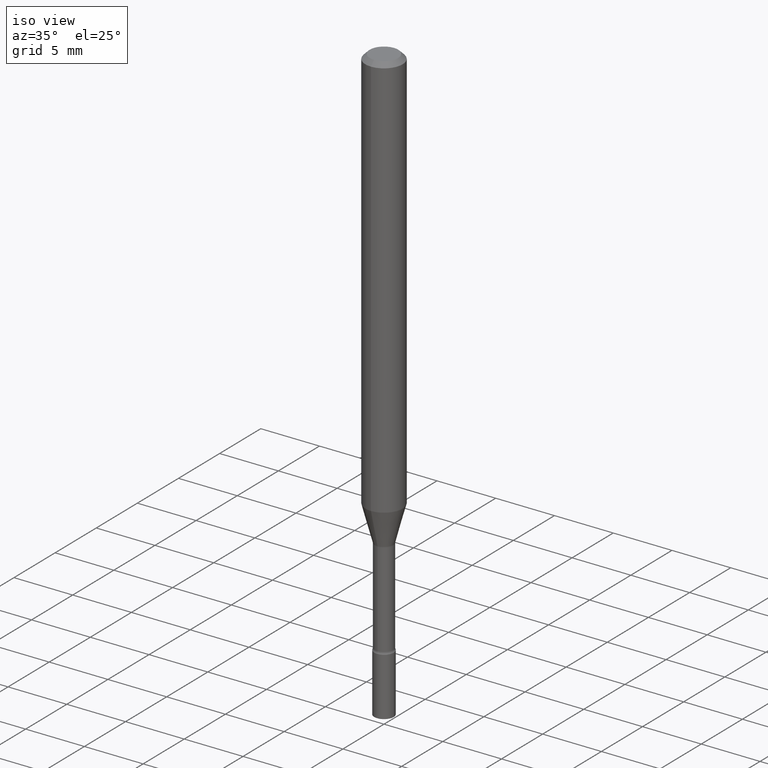
[diagram: clean part render]
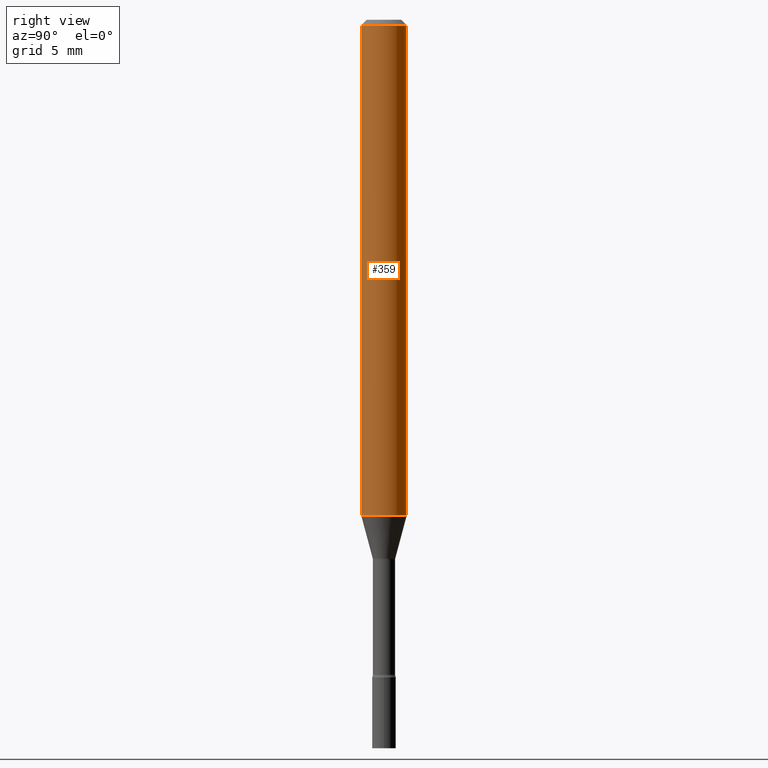
[diagram: tour spotlight — one face highlighted and labeled with its STEP entity id]
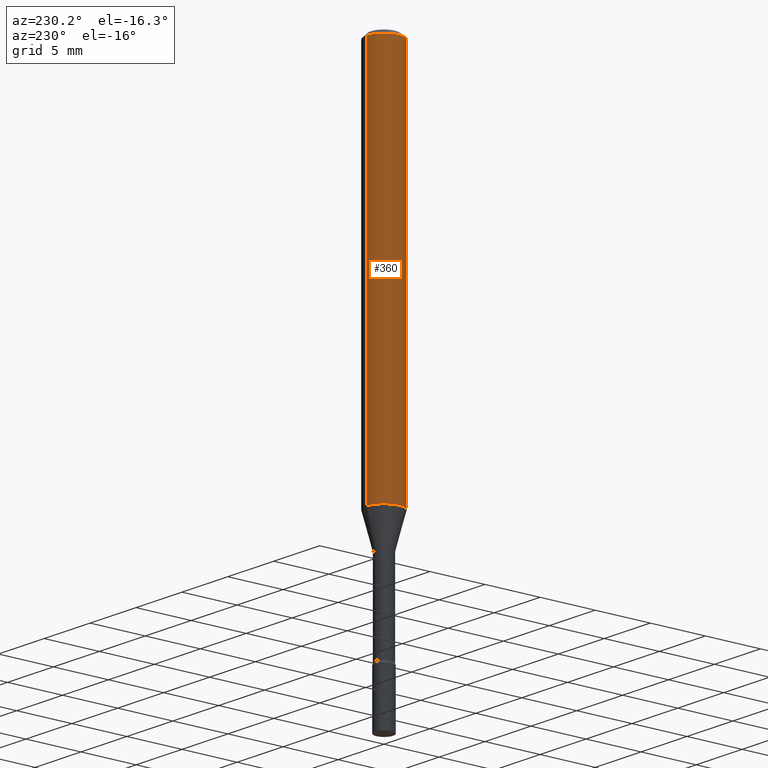
[diagram: tour spotlight — one face highlighted and labeled with its STEP entity id]
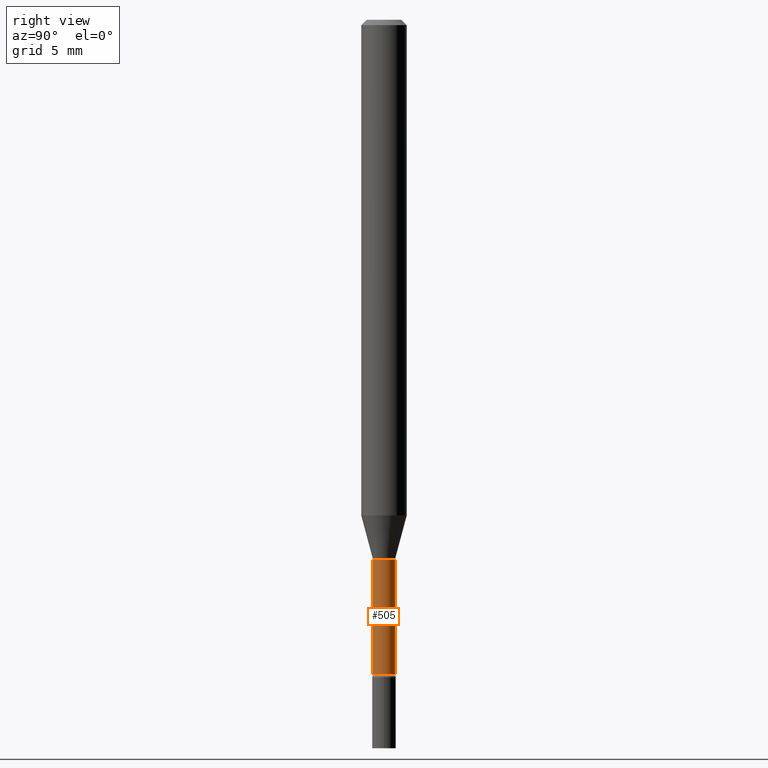
[diagram: tour spotlight — one face highlighted and labeled with its STEP entity id]
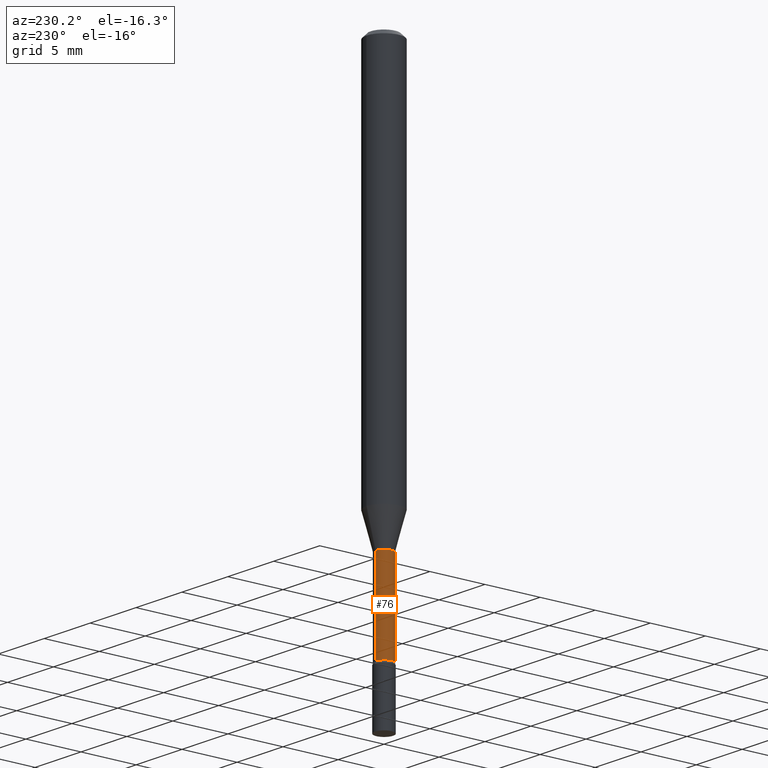
[diagram: tour spotlight — one face highlighted and labeled with its STEP entity id]
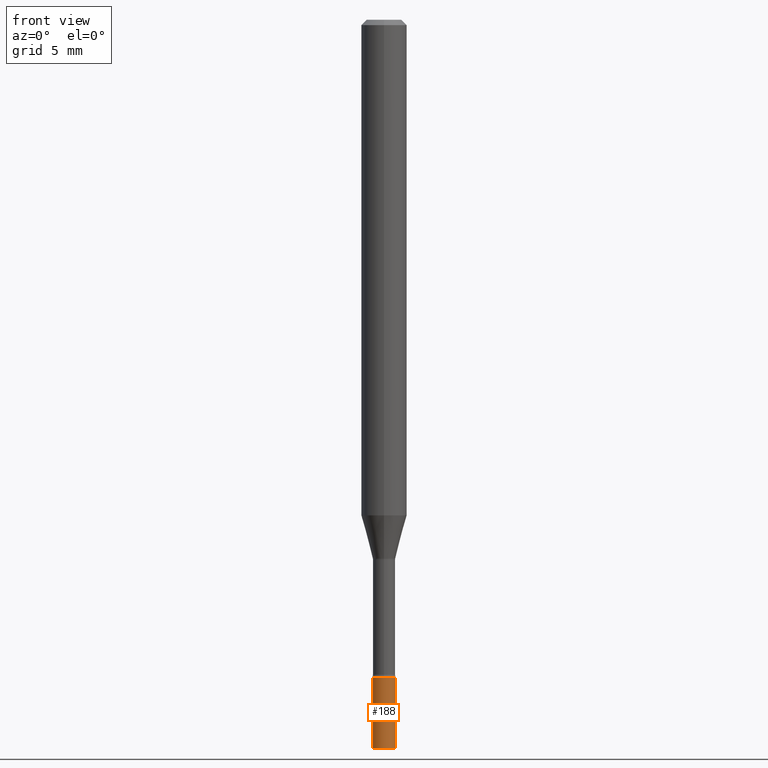
[diagram: tour spotlight — one face highlighted and labeled with its STEP entity id]
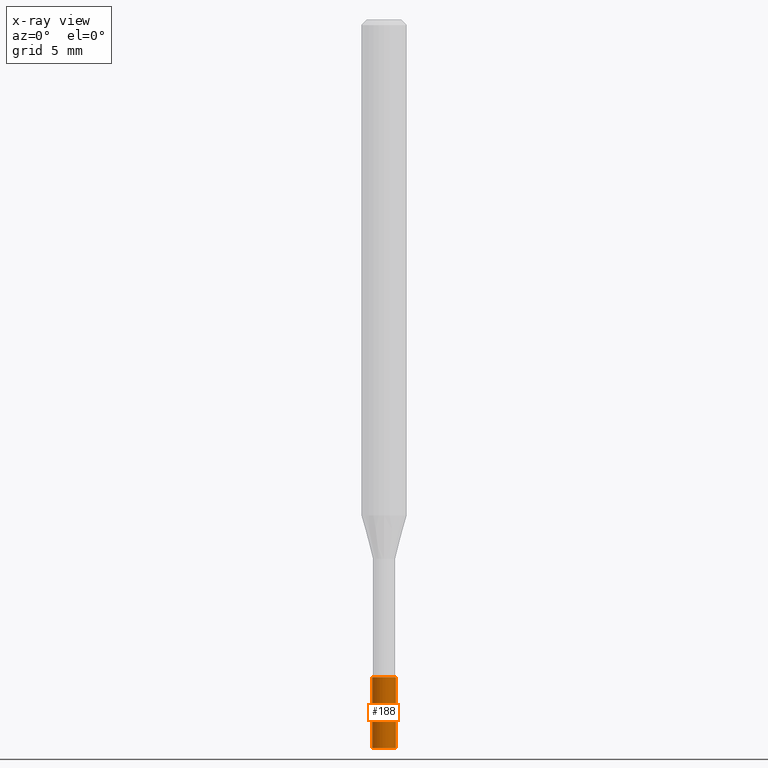
[diagram: x-ray of the same camera — body ghosted, this tour face saturated]
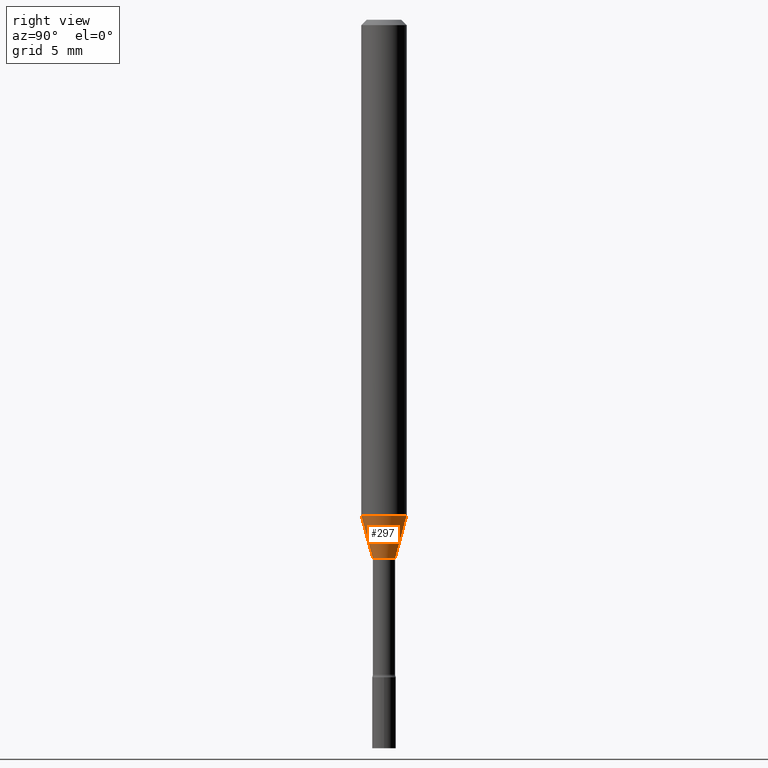
[diagram: tour spotlight — one face highlighted and labeled with its STEP entity id]
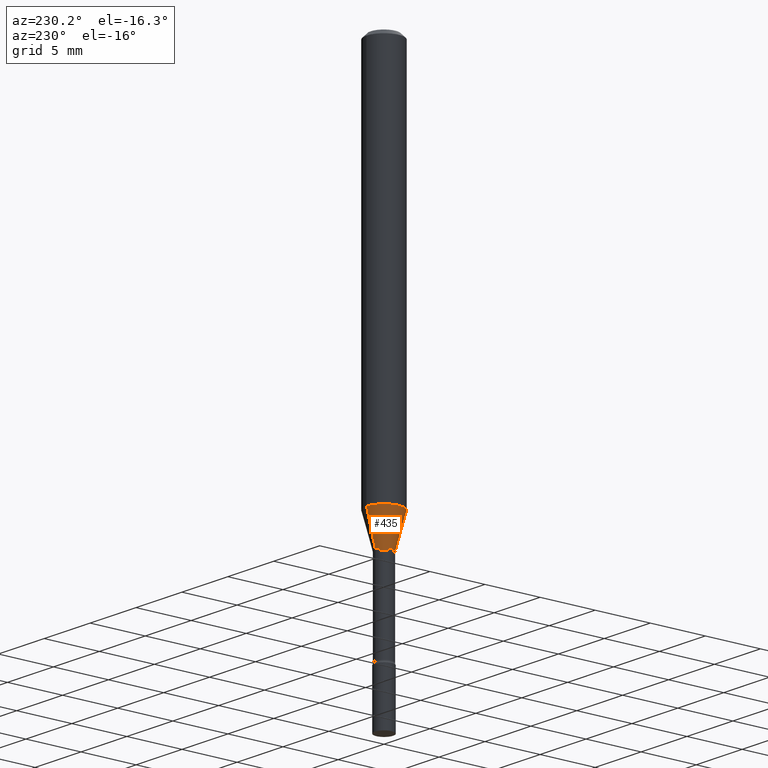
[diagram: tour spotlight — one face highlighted and labeled with its STEP entity id]
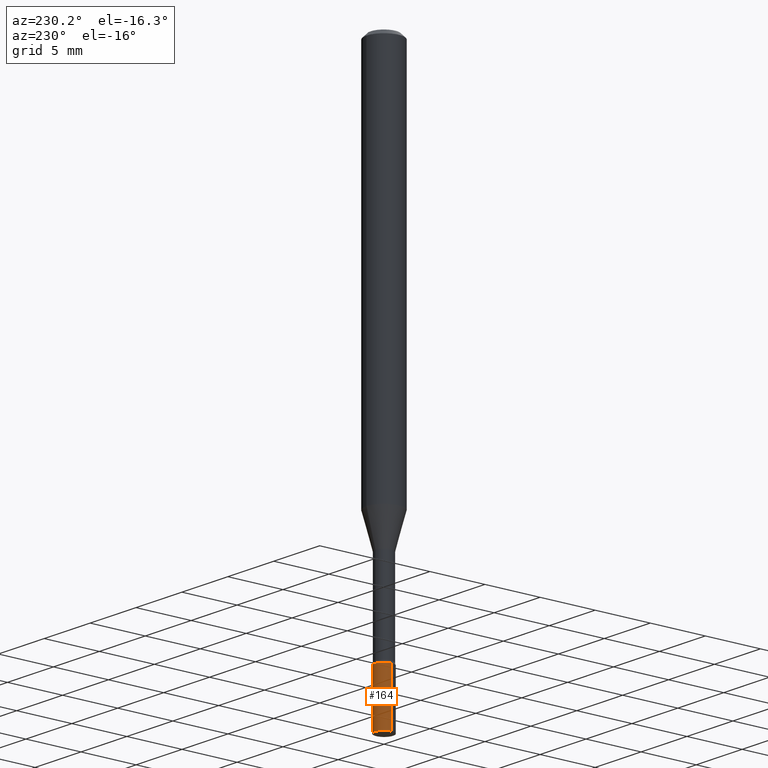
[diagram: tour spotlight — one face highlighted and labeled with its STEP entity id]
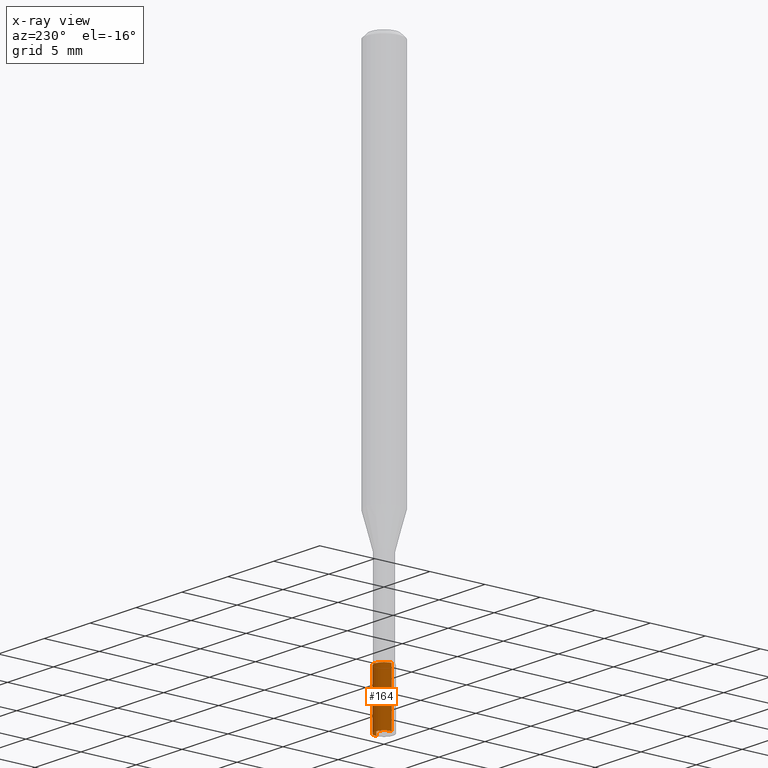
[diagram: x-ray of the same camera — body ghosted, this tour face saturated]
A machine part: a face-by-face anatomy tour. The part has 18 B-rep faces; the first image is the clean iso view, then the 8 largest visible faces are spotlighted one at a time (largest first), each with its STEP entity span.

Face 1 — right view, entity #359. In plain terms, the highlighted cylindrical surface (edge-blend (fillet) strip) has radius 1.5875 mm, axis along (-0, 0, 1).
Definition (entity closure, byte-faithful):
#16 = VERTEX_POINT ( 'NONE', #168 ) ;
#24 = CIRCLE ( 'NONE', #160, 0.06250000000000000000 ) ;
#25 = VERTEX_POINT ( 'NONE', #276 ) ;
#27 = DIRECTION ( 'NONE',  ( -2.445445688914385754E-29, 3.491514444090614360E-15, 1.000000000000000000 ) ) ;
#53 = EDGE_CURVE ( 'NONE', #134, #99, #303, .T. ) ;
#77 = CARTESIAN_POINT ( 'NONE',  ( 4.440892098500956497E-16, 0.06249999999999521910, -1.360760976698174973 ) ) ;
#80 = CARTESIAN_POINT ( 'NONE',  ( -4.364351673553584879E-16, -0.06250000000000477396, -1.360760976698174307 ) ) ;
#99 = VERTEX_POINT ( 'NONE', #77 ) ;
#102 = CYLINDRICAL_SURFACE ( 'NONE', #307, 0.06250000000000000000 ) ;
#134 = VERTEX_POINT ( 'NONE', #80 ) ;
#153 = VECTOR ( 'NONE', #498, 39.37007874015748143 ) ;
#158 = AXIS2_PLACEMENT_3D ( 'NONE', #321, #310, #233 ) ;
#160 = AXIS2_PLACEMENT_3D ( 'NONE', #161, #27, #322 ) ;
#161 = CARTESIAN_POINT ( 'NONE',  ( 3.668168533371585794E-31, -5.237271666135932017E-17, -0.01500000000000003067 ) ) ;
#168 = CARTESIAN_POINT ( 'NONE',  ( 4.440892098500961428E-16, 0.06249999999999995143, -0.01500000000000024751 ) ) ;
#179 = EDGE_CURVE ( 'NONE', #134, #25, #266, .T. ) ;
#207 = EDGE_CURVE ( 'NONE', #25, #16, #24, .T. ) ;
#233 = DIRECTION ( 'NONE',  ( -6.982962677686265922E-15, -1.000000000000000000, 4.370956789862821150E-15 ) ) ;
#238 = ORIENTED_EDGE ( 'NONE', *, *, #320, .T. ) ;
#252 = DIRECTION ( 'NONE',  ( -6.982962677686265922E-15, -1.000000000000000000, 3.491514444090614360E-15 ) ) ;
#253 = LINE ( 'NONE', #331, #153 ) ;
#266 = LINE ( 'NONE', #311, #365 ) ;
#276 = CARTESIAN_POINT ( 'NONE',  ( -4.364351673553912750E-16, -0.06250000000000005551, -0.01499999999999981209 ) ) ;
#303 = CIRCLE ( 'NONE', #158, 0.06250000000000000000 ) ;
#307 = AXIS2_PLACEMENT_3D ( 'NONE', #389, #334, #252 ) ;
#310 = DIRECTION ( 'NONE',  ( -2.445445688914385754E-29, 3.491514444090614360E-15, 1.000000000000000000 ) ) ;
#311 = CARTESIAN_POINT ( 'NONE',  ( -4.364351673553916201E-16, -0.06250000000000000000, 2.182196527556633975E-16 ) ) ;
#320 = EDGE_CURVE ( 'NONE', #99, #16, #253, .T. ) ;
#321 = CARTESIAN_POINT ( 'NONE',  ( 3.327667064109479713E-29, -4.751116605096527782E-15, -1.360760976698174529 ) ) ;
#322 = DIRECTION ( 'NONE',  ( -6.982962677686265922E-15, -1.000000000000000000, 3.483106191921935554E-15 ) ) ;
#331 = CARTESIAN_POINT ( 'NONE',  ( 4.440892098500625669E-16, 0.06250000000000000000, -2.182196527556633975E-16 ) ) ;
#334 = DIRECTION ( 'NONE',  ( -2.445445688914385754E-29, 3.491514444090614360E-15, 1.000000000000000000 ) ) ;
#359 = ADVANCED_FACE ( 'NONE', ( #510 ), #102, .T. ) ;
#365 = VECTOR ( 'NONE', #474, 39.37007874015748143 ) ;
#389 = CARTESIAN_POINT ( 'NONE',  ( 0.000000000000000000, 0.000000000000000000, 0.000000000000000000 ) ) ;
#452 = EDGE_LOOP ( 'NONE', ( #503, #238, #500, #483 ) ) ;
#474 = DIRECTION ( 'NONE',  ( -2.445445688914385754E-29, 3.491514444090614360E-15, 1.000000000000000000 ) ) ;
#483 = ORIENTED_EDGE ( 'NONE', *, *, #179, .F. ) ;
#498 = DIRECTION ( 'NONE',  ( -2.445445688914385754E-29, 3.491514444090614360E-15, 1.000000000000000000 ) ) ;
#500 = ORIENTED_EDGE ( 'NONE', *, *, #207, .F. ) ;
#503 = ORIENTED_EDGE ( 'NONE', *, *, #53, .T. ) ;
#510 = FACE_OUTER_BOUND ( 'NONE', #452, .T. ) ;

Face 2 — auxiliary view, entity #360. In plain terms, the highlighted cylindrical surface (edge-blend (fillet) strip) has radius 1.5875 mm, axis along (-0, 0, 1).
Definition (entity closure, byte-faithful):
#16 = VERTEX_POINT ( 'NONE', #168 ) ;
#22 = ORIENTED_EDGE ( 'NONE', *, *, #320, .F. ) ;
#25 = VERTEX_POINT ( 'NONE', #276 ) ;
#32 = DIRECTION ( 'NONE',  ( -6.982962677686265922E-15, -1.000000000000000000, 4.370956789862821150E-15 ) ) ;
#58 = ORIENTED_EDGE ( 'NONE', *, *, #179, .T. ) ;
#66 = CYLINDRICAL_SURFACE ( 'NONE', #336, 0.06250000000000000000 ) ;
#77 = CARTESIAN_POINT ( 'NONE',  ( 4.440892098500956497E-16, 0.06249999999999521910, -1.360760976698174973 ) ) ;
#80 = CARTESIAN_POINT ( 'NONE',  ( -4.364351673553584879E-16, -0.06250000000000477396, -1.360760976698174307 ) ) ;
#99 = VERTEX_POINT ( 'NONE', #77 ) ;
#117 = DIRECTION ( 'NONE',  ( -6.982962677686265922E-15, -1.000000000000000000, 3.491514444090614360E-15 ) ) ;
#134 = VERTEX_POINT ( 'NONE', #80 ) ;
#139 = EDGE_LOOP ( 'NONE', ( #22, #221, #58, #258 ) ) ;
#153 = VECTOR ( 'NONE', #498, 39.37007874015748143 ) ;
#168 = CARTESIAN_POINT ( 'NONE',  ( 4.440892098500961428E-16, 0.06249999999999995143, -0.01500000000000024751 ) ) ;
#170 = CARTESIAN_POINT ( 'NONE',  ( 3.668168533371585794E-31, -5.237271666135932017E-17, -0.01500000000000003067 ) ) ;
#179 = EDGE_CURVE ( 'NONE', #134, #25, #266, .T. ) ;
#212 = CIRCLE ( 'NONE', #289, 0.06250000000000000000 ) ;
#221 = ORIENTED_EDGE ( 'NONE', *, *, #430, .T. ) ;
#253 = LINE ( 'NONE', #331, #153 ) ;
#258 = ORIENTED_EDGE ( 'NONE', *, *, #376, .F. ) ;
#266 = LINE ( 'NONE', #311, #365 ) ;
#276 = CARTESIAN_POINT ( 'NONE',  ( -4.364351673553912750E-16, -0.06250000000000005551, -0.01499999999999981209 ) ) ;
#279 = DIRECTION ( 'NONE',  ( -2.445445688914385754E-29, 3.491514444090614360E-15, 1.000000000000000000 ) ) ;
#289 = AXIS2_PLACEMENT_3D ( 'NONE', #170, #279, #439 ) ;
#311 = CARTESIAN_POINT ( 'NONE',  ( -4.364351673553916201E-16, -0.06250000000000000000, 2.182196527556633975E-16 ) ) ;
#320 = EDGE_CURVE ( 'NONE', #99, #16, #253, .T. ) ;
#325 = DIRECTION ( 'NONE',  ( -2.445445688914385754E-29, 3.491514444090614360E-15, 1.000000000000000000 ) ) ;
#331 = CARTESIAN_POINT ( 'NONE',  ( 4.440892098500625669E-16, 0.06250000000000000000, -2.182196527556633975E-16 ) ) ;
#336 = AXIS2_PLACEMENT_3D ( 'NONE', #463, #451, #117 ) ;
#360 = ADVANCED_FACE ( 'NONE', ( #472 ), #66, .T. ) ;
#365 = VECTOR ( 'NONE', #474, 39.37007874015748143 ) ;
#369 = CARTESIAN_POINT ( 'NONE',  ( 3.327667064109479713E-29, -4.751116605096527782E-15, -1.360760976698174529 ) ) ;
#376 = EDGE_CURVE ( 'NONE', #16, #25, #212, .T. ) ;
#404 = CIRCLE ( 'NONE', #422, 0.06250000000000000000 ) ;
#422 = AXIS2_PLACEMENT_3D ( 'NONE', #369, #325, #32 ) ;
#430 = EDGE_CURVE ( 'NONE', #99, #134, #404, .T. ) ;
#439 = DIRECTION ( 'NONE',  ( -6.982962677686265922E-15, -1.000000000000000000, 3.483106191921935554E-15 ) ) ;
#451 = DIRECTION ( 'NONE',  ( -2.445445688914385754E-29, 3.491514444090614360E-15, 1.000000000000000000 ) ) ;
#463 = CARTESIAN_POINT ( 'NONE',  ( 0.000000000000000000, 0.000000000000000000, 0.000000000000000000 ) ) ;
#472 = FACE_OUTER_BOUND ( 'NONE', #139, .T. ) ;
#474 = DIRECTION ( 'NONE',  ( -2.445445688914385754E-29, 3.491514444090614360E-15, 1.000000000000000000 ) ) ;
#498 = DIRECTION ( 'NONE',  ( -2.445445688914385754E-29, 3.491514444090614360E-15, 1.000000000000000000 ) ) ;

Face 3 — right view, entity #505. In plain terms, the highlighted cylindrical surface (edge-blend (fillet) strip) has radius 0.776 mm, axis along (-0, 0, 1).
Definition (entity closure, byte-faithful):
#2 = EDGE_CURVE ( 'NONE', #294, #103, #283, .T. ) ;
#21 = ORIENTED_EDGE ( 'NONE', *, *, #223, .F. ) ;
#37 = CARTESIAN_POINT ( 'NONE',  ( 0.000000000000000000, 0.000000000000000000, 0.000000000000000000 ) ) ;
#78 = FACE_OUTER_BOUND ( 'NONE', #95, .T. ) ;
#85 = VERTEX_POINT ( 'NONE', #357 ) ;
#95 = EDGE_LOOP ( 'NONE', ( #324, #302, #21, #257 ) ) ;
#103 = VERTEX_POINT ( 'NONE', #358 ) ;
#142 = EDGE_CURVE ( 'NONE', #294, #85, #388, .T. ) ;
#156 = LINE ( 'NONE', #316, #477 ) ;
#167 = CYLINDRICAL_SURFACE ( 'NONE', #246, 0.03055000000000001464 ) ;
#223 = EDGE_CURVE ( 'NONE', #103, #461, #455, .T. ) ;
#228 = DIRECTION ( 'NONE',  ( -6.982962677686265133E-15, -1.000000000000000000, 0.000000000000000000 ) ) ;
#231 = DIRECTION ( 'NONE',  ( -6.982962677686265922E-15, -1.000000000000000000, 0.000000000000000000 ) ) ;
#241 = DIRECTION ( 'NONE',  ( -2.445445688914385754E-29, 3.491514444090614360E-15, 1.000000000000000000 ) ) ;
#244 = EDGE_CURVE ( 'NONE', #85, #461, #156, .T. ) ;
#246 = AXIS2_PLACEMENT_3D ( 'NONE', #37, #241, #448 ) ;
#257 = ORIENTED_EDGE ( 'NONE', *, *, #2, .F. ) ;
#265 = VECTOR ( 'NONE', #444, 39.37007874015748143 ) ;
#273 = DIRECTION ( 'NONE',  ( -2.445445688914385754E-29, 3.491514444090614360E-15, 1.000000000000000000 ) ) ;
#275 = CARTESIAN_POINT ( 'NONE',  ( 2.170708057747546405E-16, 0.03054999999999482435, -1.481974787463810728 ) ) ;
#283 = LINE ( 'NONE', #486, #265 ) ;
#294 = VERTEX_POINT ( 'NONE', #363 ) ;
#302 = ORIENTED_EDGE ( 'NONE', *, *, #244, .T. ) ;
#316 = CARTESIAN_POINT ( 'NONE',  ( 2.170708057747106862E-16, 0.03055000000000001464, -1.066657662669683377E-16 ) ) ;
#318 = AXIS2_PLACEMENT_3D ( 'NONE', #353, #431, #231 ) ;
#324 = ORIENTED_EDGE ( 'NONE', *, *, #142, .T. ) ;
#353 = CARTESIAN_POINT ( 'NONE',  ( 4.395943500391912807E-29, -6.276361113477980336E-15, -1.797604224178627419 ) ) ;
#357 = CARTESIAN_POINT ( 'NONE',  ( 2.239985974484157418E-16, 0.03054999999999375923, -1.797604224178627419 ) ) ;
#358 = CARTESIAN_POINT ( 'NONE',  ( -2.133295098032791645E-16, -0.03055000000000517371, -1.481974787463810728 ) ) ;
#363 = CARTESIAN_POINT ( 'NONE',  ( -2.133295098032716950E-16, -0.03055000000000630822, -1.797604224178627419 ) ) ;
#372 = AXIS2_PLACEMENT_3D ( 'NONE', #432, #273, #228 ) ;
#388 = CIRCLE ( 'NONE', #318, 0.03055000000000003199 ) ;
#431 = DIRECTION ( 'NONE',  ( -2.445445688914385754E-29, 3.491514444090614360E-15, 1.000000000000000000 ) ) ;
#432 = CARTESIAN_POINT ( 'NONE',  ( 3.624088855083189206E-29, -5.174336376208013711E-15, -1.481974787463810728 ) ) ;
#444 = DIRECTION ( 'NONE',  ( -2.445445688914385754E-29, 3.491514444090614360E-15, 1.000000000000000000 ) ) ;
#448 = DIRECTION ( 'NONE',  ( -6.982962677686265922E-15, -1.000000000000000000, 3.491514444090614755E-15 ) ) ;
#455 = CIRCLE ( 'NONE', #372, 0.03055000000000000077 ) ;
#461 = VERTEX_POINT ( 'NONE', #275 ) ;
#477 = VECTOR ( 'NONE', #478, 39.37007874015748143 ) ;
#478 = DIRECTION ( 'NONE',  ( -2.445445688914385754E-29, 3.491514444090614360E-15, 1.000000000000000000 ) ) ;
#486 = CARTESIAN_POINT ( 'NONE',  ( -2.133295098033155261E-16, -0.03055000000000001464, 1.066657662669683377E-16 ) ) ;
#505 = ADVANCED_FACE ( 'NONE', ( #78 ), #167, .T. ) ;

Face 4 — auxiliary view, entity #76. In plain terms, the highlighted cylindrical surface (edge-blend (fillet) strip) has radius 0.776 mm, axis along (-0, 0, 1).
Definition (entity closure, byte-faithful):
#2 = EDGE_CURVE ( 'NONE', #294, #103, #283, .T. ) ;
#65 = CARTESIAN_POINT ( 'NONE',  ( 0.000000000000000000, 0.000000000000000000, 0.000000000000000000 ) ) ;
#73 = DIRECTION ( 'NONE',  ( -6.982962677686265922E-15, -1.000000000000000000, 3.491514444090614755E-15 ) ) ;
#74 = CARTESIAN_POINT ( 'NONE',  ( 3.624088855083189206E-29, -5.174336376208013711E-15, -1.481974787463810728 ) ) ;
#76 = ADVANCED_FACE ( 'NONE', ( #104 ), #469, .T. ) ;
#85 = VERTEX_POINT ( 'NONE', #357 ) ;
#90 = CIRCLE ( 'NONE', #416, 0.03055000000000000077 ) ;
#103 = VERTEX_POINT ( 'NONE', #358 ) ;
#104 = FACE_OUTER_BOUND ( 'NONE', #280, .T. ) ;
#110 = DIRECTION ( 'NONE',  ( -6.982962677686265922E-15, -1.000000000000000000, 0.000000000000000000 ) ) ;
#114 = CARTESIAN_POINT ( 'NONE',  ( 4.395943500391912807E-29, -6.276361113477980336E-15, -1.797604224178627419 ) ) ;
#118 = DIRECTION ( 'NONE',  ( -6.982962677686265133E-15, -1.000000000000000000, 0.000000000000000000 ) ) ;
#119 = ORIENTED_EDGE ( 'NONE', *, *, #237, .F. ) ;
#145 = AXIS2_PLACEMENT_3D ( 'NONE', #65, #513, #73 ) ;
#156 = LINE ( 'NONE', #316, #477 ) ;
#187 = EDGE_CURVE ( 'NONE', #85, #294, #502, .T. ) ;
#237 = EDGE_CURVE ( 'NONE', #461, #103, #90, .T. ) ;
#244 = EDGE_CURVE ( 'NONE', #85, #461, #156, .T. ) ;
#250 = AXIS2_PLACEMENT_3D ( 'NONE', #114, #362, #110 ) ;
#265 = VECTOR ( 'NONE', #444, 39.37007874015748143 ) ;
#275 = CARTESIAN_POINT ( 'NONE',  ( 2.170708057747546405E-16, 0.03054999999999482435, -1.481974787463810728 ) ) ;
#280 = EDGE_LOOP ( 'NONE', ( #287, #332, #378, #119 ) ) ;
#283 = LINE ( 'NONE', #486, #265 ) ;
#287 = ORIENTED_EDGE ( 'NONE', *, *, #244, .F. ) ;
#294 = VERTEX_POINT ( 'NONE', #363 ) ;
#316 = CARTESIAN_POINT ( 'NONE',  ( 2.170708057747106862E-16, 0.03055000000000001464, -1.066657662669683377E-16 ) ) ;
#332 = ORIENTED_EDGE ( 'NONE', *, *, #187, .T. ) ;
#357 = CARTESIAN_POINT ( 'NONE',  ( 2.239985974484157418E-16, 0.03054999999999375923, -1.797604224178627419 ) ) ;
#358 = CARTESIAN_POINT ( 'NONE',  ( -2.133295098032791645E-16, -0.03055000000000517371, -1.481974787463810728 ) ) ;
#362 = DIRECTION ( 'NONE',  ( -2.445445688914385754E-29, 3.491514444090614360E-15, 1.000000000000000000 ) ) ;
#363 = CARTESIAN_POINT ( 'NONE',  ( -2.133295098032716950E-16, -0.03055000000000630822, -1.797604224178627419 ) ) ;
#378 = ORIENTED_EDGE ( 'NONE', *, *, #2, .T. ) ;
#416 = AXIS2_PLACEMENT_3D ( 'NONE', #74, #481, #118 ) ;
#444 = DIRECTION ( 'NONE',  ( -2.445445688914385754E-29, 3.491514444090614360E-15, 1.000000000000000000 ) ) ;
#461 = VERTEX_POINT ( 'NONE', #275 ) ;
#469 = CYLINDRICAL_SURFACE ( 'NONE', #145, 0.03055000000000001464 ) ;
#477 = VECTOR ( 'NONE', #478, 39.37007874015748143 ) ;
#478 = DIRECTION ( 'NONE',  ( -2.445445688914385754E-29, 3.491514444090614360E-15, 1.000000000000000000 ) ) ;
#481 = DIRECTION ( 'NONE',  ( -2.445445688914385754E-29, 3.491514444090614360E-15, 1.000000000000000000 ) ) ;
#486 = CARTESIAN_POINT ( 'NONE',  ( -2.133295098033155261E-16, -0.03055000000000001464, 1.066657662669683377E-16 ) ) ;
#502 = CIRCLE ( 'NONE', #250, 0.03055000000000003199 ) ;
#513 = DIRECTION ( 'NONE',  ( -2.445445688914385754E-29, 3.491514444090614360E-15, 1.000000000000000000 ) ) ;

Face 5 — front view, entity #188. An x-ray twin of the same camera follows (body ghosted, this face saturated) — the face is partly hidden behind the body. In plain terms, the highlighted cylindrical surface (edge-blend (fillet) strip) has radius 0.8255 mm, axis along (-0, 0, 1).
Definition (entity closure, byte-faithful):
#9 = CIRCLE ( 'NONE', #137, 0.03250000000000000111 ) ;
#15 = AXIS2_PLACEMENT_3D ( 'NONE', #89, #373, #213 ) ;
#29 = CIRCLE ( 'NONE', #15, 0.03250000000000000111 ) ;
#30 = CYLINDRICAL_SURFACE ( 'NONE', #185, 0.03250000000000000111 ) ;
#41 = CARTESIAN_POINT ( 'NONE',  ( -0.03250000000000000111, -6.411616858027052188E-15, -2.000000000000000000 ) ) ;
#60 = EDGE_CURVE ( 'NONE', #480, #428, #306, .T. ) ;
#81 = CARTESIAN_POINT ( 'NONE',  ( 0.03250000000000000111, -7.209908964711093729E-15, -2.000000000000000000 ) ) ;
#82 = ORIENTED_EDGE ( 'NONE', *, *, #60, .T. ) ;
#89 = CARTESIAN_POINT ( 'NONE',  ( 4.890937612370273194E-29, -6.982962677686291165E-15, -2.000000000000000000 ) ) ;
#92 = EDGE_CURVE ( 'NONE', #415, #408, #224, .T. ) ;
#131 = VECTOR ( 'NONE', #193, 39.37007874015748143 ) ;
#137 = AXIS2_PLACEMENT_3D ( 'NONE', #399, #152, #442 ) ;
#152 = DIRECTION ( 'NONE',  ( -2.445468806185136597E-29, 3.491481338843145583E-15, 1.000000000000000000 ) ) ;
#163 = CARTESIAN_POINT ( 'NONE',  ( 0.03250000000000000111, -6.529070103636681305E-15, -1.804999999999999938 ) ) ;
#169 = ORIENTED_EDGE ( 'NONE', *, *, #327, .T. ) ;
#185 = AXIS2_PLACEMENT_3D ( 'NONE', #470, #196, #511 ) ;
#188 = ADVANCED_FACE ( 'NONE', ( #437 ), #30, .T. ) ;
#193 = DIRECTION ( 'NONE',  ( -2.445468806185136877E-29, 3.491481338843145188E-15, 1.000000000000000000 ) ) ;
#196 = DIRECTION ( 'NONE',  ( -2.445468806185136597E-29, 3.491481338843145583E-15, 1.000000000000000000 ) ) ;
#213 = DIRECTION ( 'NONE',  ( 1.000000000000000000, -6.982962677686258033E-15, 0.000000000000000000 ) ) ;
#224 = LINE ( 'NONE', #351, #131 ) ;
#306 = LINE ( 'NONE', #466, #518 ) ;
#308 = DIRECTION ( 'NONE',  ( -2.445468806185136877E-29, 3.491481338843145188E-15, 1.000000000000000000 ) ) ;
#327 = EDGE_CURVE ( 'NONE', #415, #480, #29, .T. ) ;
#339 = ORIENTED_EDGE ( 'NONE', *, *, #494, .F. ) ;
#351 = CARTESIAN_POINT ( 'NONE',  ( -0.03250000000000000111, 2.309263891220325683E-16, -1.598653904332844407E-30 ) ) ;
#373 = DIRECTION ( 'NONE',  ( -2.445468806185136597E-29, 3.491481338843145583E-15, 1.000000000000000000 ) ) ;
#399 = CARTESIAN_POINT ( 'NONE',  ( 4.414071195164171423E-29, -6.302123816611877952E-15, -1.804999999999999938 ) ) ;
#406 = CARTESIAN_POINT ( 'NONE',  ( -0.03250000000000000111, -6.411616858027052188E-15, -1.804999999999999938 ) ) ;
#408 = VERTEX_POINT ( 'NONE', #406 ) ;
#415 = VERTEX_POINT ( 'NONE', #41 ) ;
#425 = ORIENTED_EDGE ( 'NONE', *, *, #92, .F. ) ;
#428 = VERTEX_POINT ( 'NONE', #163 ) ;
#437 = FACE_OUTER_BOUND ( 'NONE', #460, .T. ) ;
#442 = DIRECTION ( 'NONE',  ( 1.000000000000000000, -6.982962677686258033E-15, 0.000000000000000000 ) ) ;
#460 = EDGE_LOOP ( 'NONE', ( #425, #169, #82, #339 ) ) ;
#466 = CARTESIAN_POINT ( 'NONE',  ( 0.03250000000000000111, -2.269462870248036484E-16, 1.584757452133678993E-30 ) ) ;
#470 = CARTESIAN_POINT ( 'NONE',  ( 0.000000000000000000, 0.000000000000000000, 0.000000000000000000 ) ) ;
#480 = VERTEX_POINT ( 'NONE', #81 ) ;
#494 = EDGE_CURVE ( 'NONE', #408, #428, #9, .T. ) ;
#511 = DIRECTION ( 'NONE',  ( 1.000000000000000000, -6.982962677686265922E-15, 4.876176775795935232E-29 ) ) ;
#518 = VECTOR ( 'NONE', #308, 39.37007874015748143 ) ;

Face 6 — right view, entity #297. In plain terms, the highlighted conical surface has half-angle 15 deg.
Definition (entity closure, byte-faithful):
#20 = VERTEX_POINT ( 'NONE', #195 ) ;
#45 = VECTOR ( 'NONE', #123, 39.37007874015748854 ) ;
#53 = EDGE_CURVE ( 'NONE', #134, #99, #303, .T. ) ;
#68 = AXIS2_PLACEMENT_3D ( 'NONE', #270, #434, #445 ) ;
#77 = CARTESIAN_POINT ( 'NONE',  ( 4.440892098500956497E-16, 0.06249999999999521910, -1.360760976698174973 ) ) ;
#80 = CARTESIAN_POINT ( 'NONE',  ( -4.364351673553584879E-16, -0.06250000000000477396, -1.360760976698174307 ) ) ;
#87 = CARTESIAN_POINT ( 'NONE',  ( -2.168985900527260742E-16, -0.03106111260566917637, -1.478092501787273250 ) ) ;
#97 = CONICAL_SURFACE ( 'NONE', #127, 0.03106111260566401730, 0.2617993877991495189 ) ;
#99 = VERTEX_POINT ( 'NONE', #77 ) ;
#115 = CARTESIAN_POINT ( 'NONE',  ( 3.614594936312366017E-29, -5.160781319692296101E-15, -1.478092501787273250 ) ) ;
#123 = DIRECTION ( 'NONE',  ( -1.807323732225324617E-15, -0.2588190451025174088, 0.9659258262890690894 ) ) ;
#127 = AXIS2_PLACEMENT_3D ( 'NONE', #115, #240, #201 ) ;
#134 = VERTEX_POINT ( 'NONE', #80 ) ;
#141 = CIRCLE ( 'NONE', #68, 0.03106111260566401730 ) ;
#158 = AXIS2_PLACEMENT_3D ( 'NONE', #321, #310, #233 ) ;
#162 = FACE_OUTER_BOUND ( 'NONE', #446, .T. ) ;
#181 = LINE ( 'NONE', #379, #300 ) ;
#184 = ORIENTED_EDGE ( 'NONE', *, *, #458, .F. ) ;
#195 = CARTESIAN_POINT ( 'NONE',  ( 3.323958445579713036E-16, 0.03106111260565885129, -1.478092501787273250 ) ) ;
#201 = DIRECTION ( 'NONE',  ( -6.982962677686265922E-15, -1.000000000000000000, 0.000000000000000000 ) ) ;
#233 = DIRECTION ( 'NONE',  ( -6.982962677686265922E-15, -1.000000000000000000, 4.370956789862821150E-15 ) ) ;
#240 = DIRECTION ( 'NONE',  ( -2.445445688914385754E-29, 3.491514444090614360E-15, 1.000000000000000000 ) ) ;
#242 = ORIENTED_EDGE ( 'NONE', *, *, #383, .T. ) ;
#261 = ORIENTED_EDGE ( 'NONE', *, *, #53, .F. ) ;
#270 = CARTESIAN_POINT ( 'NONE',  ( 3.614594936312366017E-29, -5.160781319692296101E-15, -1.478092501787273250 ) ) ;
#297 = ADVANCED_FACE ( 'NONE', ( #162 ), #97, .T. ) ;
#300 = VECTOR ( 'NONE', #488, 39.37007874015748854 ) ;
#303 = CIRCLE ( 'NONE', #158, 0.06250000000000000000 ) ;
#310 = DIRECTION ( 'NONE',  ( -2.445445688914385754E-29, 3.491514444090614360E-15, 1.000000000000000000 ) ) ;
#317 = LINE ( 'NONE', #479, #45 ) ;
#321 = CARTESIAN_POINT ( 'NONE',  ( 3.327667064109479713E-29, -4.751116605096527782E-15, -1.360760976698174529 ) ) ;
#335 = EDGE_CURVE ( 'NONE', #20, #99, #181, .T. ) ;
#349 = VERTEX_POINT ( 'NONE', #87 ) ;
#379 = CARTESIAN_POINT ( 'NONE',  ( 2.207024792658465631E-16, 0.03106111260565885476, -1.478092501787273250 ) ) ;
#381 = ORIENTED_EDGE ( 'NONE', *, *, #335, .T. ) ;
#383 = EDGE_CURVE ( 'NONE', #349, #20, #141, .T. ) ;
#434 = DIRECTION ( 'NONE',  ( -2.445445688914385754E-29, 3.491514444090614360E-15, 1.000000000000000000 ) ) ;
#445 = DIRECTION ( 'NONE',  ( -6.982962677686265922E-15, -1.000000000000000000, 0.000000000000000000 ) ) ;
#446 = EDGE_LOOP ( 'NONE', ( #242, #381, #261, #184 ) ) ;
#458 = EDGE_CURVE ( 'NONE', #349, #134, #317, .T. ) ;
#479 = CARTESIAN_POINT ( 'NONE',  ( -2.168985900527260742E-16, -0.03106111260566917637, -1.478092501787273250 ) ) ;
#488 = DIRECTION ( 'NONE',  ( 1.839019923739594793E-15, 0.2588190451025241812, 0.9659258262890673130 ) ) ;

Face 7 — auxiliary view, entity #435. In plain terms, the highlighted conical surface has half-angle 15 deg.
Definition (entity closure, byte-faithful):
#1 = CARTESIAN_POINT ( 'NONE',  ( 3.614594936312366017E-29, -5.160781319692296101E-15, -1.478092501787273250 ) ) ;
#4 = ORIENTED_EDGE ( 'NONE', *, *, #335, .F. ) ;
#20 = VERTEX_POINT ( 'NONE', #195 ) ;
#32 = DIRECTION ( 'NONE',  ( -6.982962677686265922E-15, -1.000000000000000000, 4.370956789862821150E-15 ) ) ;
#45 = VECTOR ( 'NONE', #123, 39.37007874015748854 ) ;
#61 = ORIENTED_EDGE ( 'NONE', *, *, #430, .F. ) ;
#77 = CARTESIAN_POINT ( 'NONE',  ( 4.440892098500956497E-16, 0.06249999999999521910, -1.360760976698174973 ) ) ;
#80 = CARTESIAN_POINT ( 'NONE',  ( -4.364351673553584879E-16, -0.06250000000000477396, -1.360760976698174307 ) ) ;
#87 = CARTESIAN_POINT ( 'NONE',  ( -2.168985900527260742E-16, -0.03106111260566917637, -1.478092501787273250 ) ) ;
#99 = VERTEX_POINT ( 'NONE', #77 ) ;
#105 = CIRCLE ( 'NONE', #144, 0.03106111260566401730 ) ;
#112 = DIRECTION ( 'NONE',  ( -6.982962677686265922E-15, -1.000000000000000000, 0.000000000000000000 ) ) ;
#123 = DIRECTION ( 'NONE',  ( -1.807323732225324617E-15, -0.2588190451025174088, 0.9659258262890690894 ) ) ;
#134 = VERTEX_POINT ( 'NONE', #80 ) ;
#144 = AXIS2_PLACEMENT_3D ( 'NONE', #330, #288, #274 ) ;
#181 = LINE ( 'NONE', #379, #300 ) ;
#195 = CARTESIAN_POINT ( 'NONE',  ( 3.323958445579713036E-16, 0.03106111260565885129, -1.478092501787273250 ) ) ;
#219 = EDGE_LOOP ( 'NONE', ( #4, #489, #304, #61 ) ) ;
#227 = AXIS2_PLACEMENT_3D ( 'NONE', #1, #485, #112 ) ;
#232 = FACE_OUTER_BOUND ( 'NONE', #219, .T. ) ;
#274 = DIRECTION ( 'NONE',  ( -6.982962677686265922E-15, -1.000000000000000000, 0.000000000000000000 ) ) ;
#277 = EDGE_CURVE ( 'NONE', #20, #349, #105, .T. ) ;
#288 = DIRECTION ( 'NONE',  ( -2.445445688914385754E-29, 3.491514444090614360E-15, 1.000000000000000000 ) ) ;
#300 = VECTOR ( 'NONE', #488, 39.37007874015748854 ) ;
#304 = ORIENTED_EDGE ( 'NONE', *, *, #458, .T. ) ;
#317 = LINE ( 'NONE', #479, #45 ) ;
#325 = DIRECTION ( 'NONE',  ( -2.445445688914385754E-29, 3.491514444090614360E-15, 1.000000000000000000 ) ) ;
#330 = CARTESIAN_POINT ( 'NONE',  ( 3.614594936312366017E-29, -5.160781319692296101E-15, -1.478092501787273250 ) ) ;
#335 = EDGE_CURVE ( 'NONE', #20, #99, #181, .T. ) ;
#345 = CONICAL_SURFACE ( 'NONE', #227, 0.03106111260566401730, 0.2617993877991495189 ) ;
#349 = VERTEX_POINT ( 'NONE', #87 ) ;
#369 = CARTESIAN_POINT ( 'NONE',  ( 3.327667064109479713E-29, -4.751116605096527782E-15, -1.360760976698174529 ) ) ;
#379 = CARTESIAN_POINT ( 'NONE',  ( 2.207024792658465631E-16, 0.03106111260565885476, -1.478092501787273250 ) ) ;
#404 = CIRCLE ( 'NONE', #422, 0.06250000000000000000 ) ;
#422 = AXIS2_PLACEMENT_3D ( 'NONE', #369, #325, #32 ) ;
#430 = EDGE_CURVE ( 'NONE', #99, #134, #404, .T. ) ;
#435 = ADVANCED_FACE ( 'NONE', ( #232 ), #345, .T. ) ;
#458 = EDGE_CURVE ( 'NONE', #349, #134, #317, .T. ) ;
#479 = CARTESIAN_POINT ( 'NONE',  ( -2.168985900527260742E-16, -0.03106111260566917637, -1.478092501787273250 ) ) ;
#485 = DIRECTION ( 'NONE',  ( -2.445445688914385754E-29, 3.491514444090614360E-15, 1.000000000000000000 ) ) ;
#488 = DIRECTION ( 'NONE',  ( 1.839019923739594793E-15, 0.2588190451025241812, 0.9659258262890673130 ) ) ;
#489 = ORIENTED_EDGE ( 'NONE', *, *, #277, .T. ) ;

Face 8 — auxiliary view, entity #164. An x-ray twin of the same camera follows (body ghosted, this face saturated) — the face is partly hidden behind the body. In plain terms, the highlighted cylindrical surface (edge-blend (fillet) strip) has radius 0.8255 mm, axis along (-0, 0, 1).
Definition (entity closure, byte-faithful):
#36 = DIRECTION ( 'NONE',  ( -2.445468806185136597E-29, 3.491481338843145583E-15, 1.000000000000000000 ) ) ;
#41 = CARTESIAN_POINT ( 'NONE',  ( -0.03250000000000000111, -6.411616858027052188E-15, -2.000000000000000000 ) ) ;
#60 = EDGE_CURVE ( 'NONE', #480, #428, #306, .T. ) ;
#81 = CARTESIAN_POINT ( 'NONE',  ( 0.03250000000000000111, -7.209908964711093729E-15, -2.000000000000000000 ) ) ;
#92 = EDGE_CURVE ( 'NONE', #415, #408, #224, .T. ) ;
#131 = VECTOR ( 'NONE', #193, 39.37007874015748143 ) ;
#138 = ORIENTED_EDGE ( 'NONE', *, *, #260, .F. ) ;
#163 = CARTESIAN_POINT ( 'NONE',  ( 0.03250000000000000111, -6.529070103636681305E-15, -1.804999999999999938 ) ) ;
#164 = ADVANCED_FACE ( 'NONE', ( #509 ), #236, .T. ) ;
#177 = EDGE_LOOP ( 'NONE', ( #412, #426, #138, #211 ) ) ;
#193 = DIRECTION ( 'NONE',  ( -2.445468806185136877E-29, 3.491481338843145188E-15, 1.000000000000000000 ) ) ;
#211 = ORIENTED_EDGE ( 'NONE', *, *, #60, .F. ) ;
#224 = LINE ( 'NONE', #351, #131 ) ;
#236 = CYLINDRICAL_SURFACE ( 'NONE', #272, 0.03250000000000000111 ) ;
#260 = EDGE_CURVE ( 'NONE', #428, #408, #520, .T. ) ;
#272 = AXIS2_PLACEMENT_3D ( 'NONE', #440, #315, #519 ) ;
#293 = AXIS2_PLACEMENT_3D ( 'NONE', #449, #36, #328 ) ;
#301 = AXIS2_PLACEMENT_3D ( 'NONE', #475, #403, #313 ) ;
#306 = LINE ( 'NONE', #466, #518 ) ;
#308 = DIRECTION ( 'NONE',  ( -2.445468806185136877E-29, 3.491481338843145188E-15, 1.000000000000000000 ) ) ;
#313 = DIRECTION ( 'NONE',  ( 1.000000000000000000, -6.982962677686258033E-15, 0.000000000000000000 ) ) ;
#315 = DIRECTION ( 'NONE',  ( -2.445468806185136597E-29, 3.491481338843145583E-15, 1.000000000000000000 ) ) ;
#328 = DIRECTION ( 'NONE',  ( 1.000000000000000000, -6.982962677686258033E-15, 0.000000000000000000 ) ) ;
#351 = CARTESIAN_POINT ( 'NONE',  ( -0.03250000000000000111, 2.309263891220325683E-16, -1.598653904332844407E-30 ) ) ;
#403 = DIRECTION ( 'NONE',  ( -2.445468806185136597E-29, 3.491481338843145583E-15, 1.000000000000000000 ) ) ;
#406 = CARTESIAN_POINT ( 'NONE',  ( -0.03250000000000000111, -6.411616858027052188E-15, -1.804999999999999938 ) ) ;
#408 = VERTEX_POINT ( 'NONE', #406 ) ;
#412 = ORIENTED_EDGE ( 'NONE', *, *, #504, .T. ) ;
#415 = VERTEX_POINT ( 'NONE', #41 ) ;
#426 = ORIENTED_EDGE ( 'NONE', *, *, #92, .T. ) ;
#428 = VERTEX_POINT ( 'NONE', #163 ) ;
#433 = CIRCLE ( 'NONE', #301, 0.03250000000000000111 ) ;
#440 = CARTESIAN_POINT ( 'NONE',  ( 0.000000000000000000, 0.000000000000000000, 0.000000000000000000 ) ) ;
#449 = CARTESIAN_POINT ( 'NONE',  ( 4.414071195164171423E-29, -6.302123816611877952E-15, -1.804999999999999938 ) ) ;
#466 = CARTESIAN_POINT ( 'NONE',  ( 0.03250000000000000111, -2.269462870248036484E-16, 1.584757452133678993E-30 ) ) ;
#475 = CARTESIAN_POINT ( 'NONE',  ( 4.890937612370273194E-29, -6.982962677686291165E-15, -2.000000000000000000 ) ) ;
#480 = VERTEX_POINT ( 'NONE', #81 ) ;
#504 = EDGE_CURVE ( 'NONE', #480, #415, #433, .T. ) ;
#509 = FACE_OUTER_BOUND ( 'NONE', #177, .T. ) ;
#518 = VECTOR ( 'NONE', #308, 39.37007874015748143 ) ;
#519 = DIRECTION ( 'NONE',  ( 1.000000000000000000, -6.982962677686265922E-15, 4.876176775795935232E-29 ) ) ;
#520 = CIRCLE ( 'NONE', #293, 0.03250000000000000111 ) ;